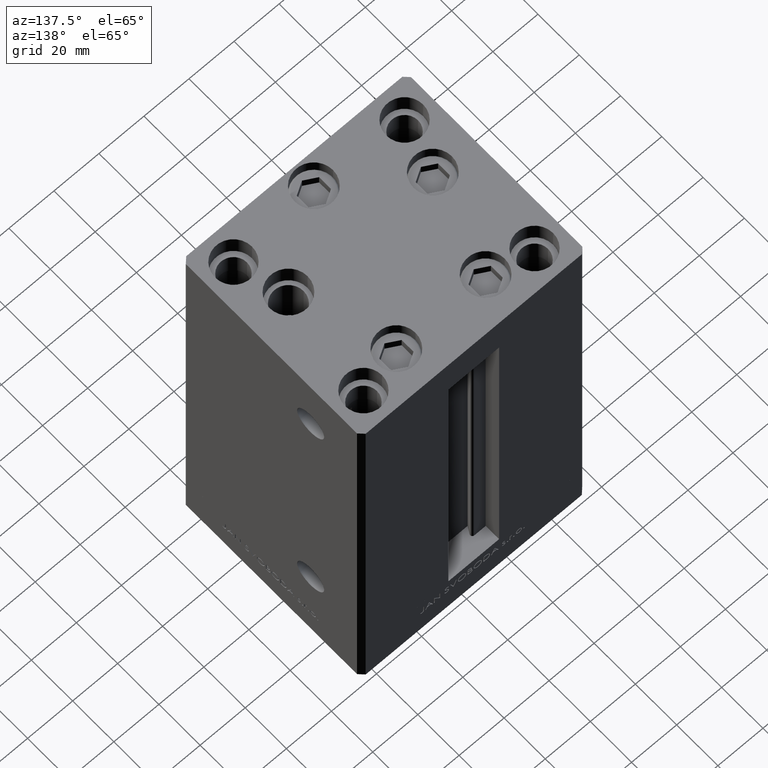
[diagram: clean part render]
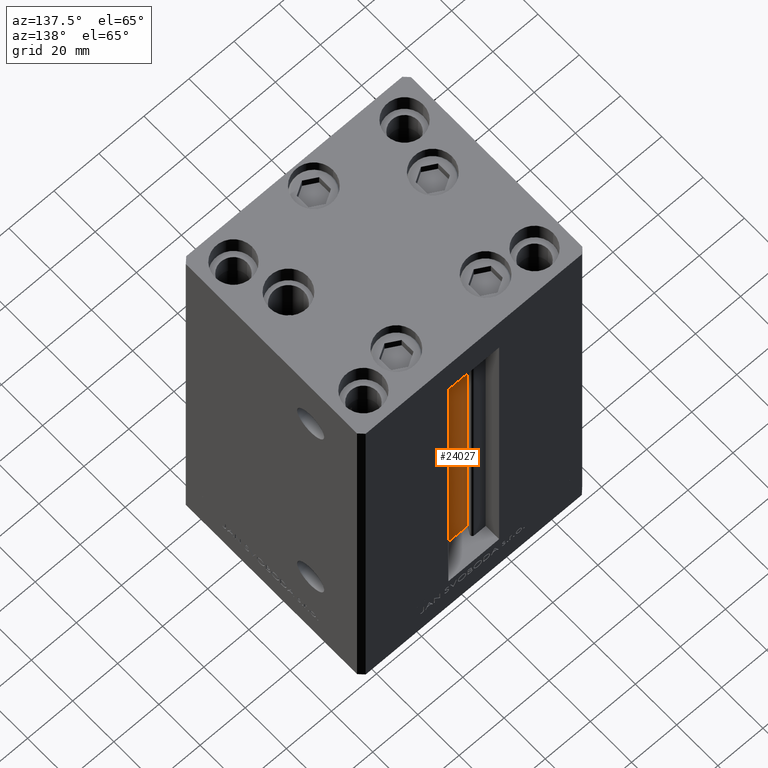
[diagram: same view with one face highlighted and labeled with its STEP entity id]
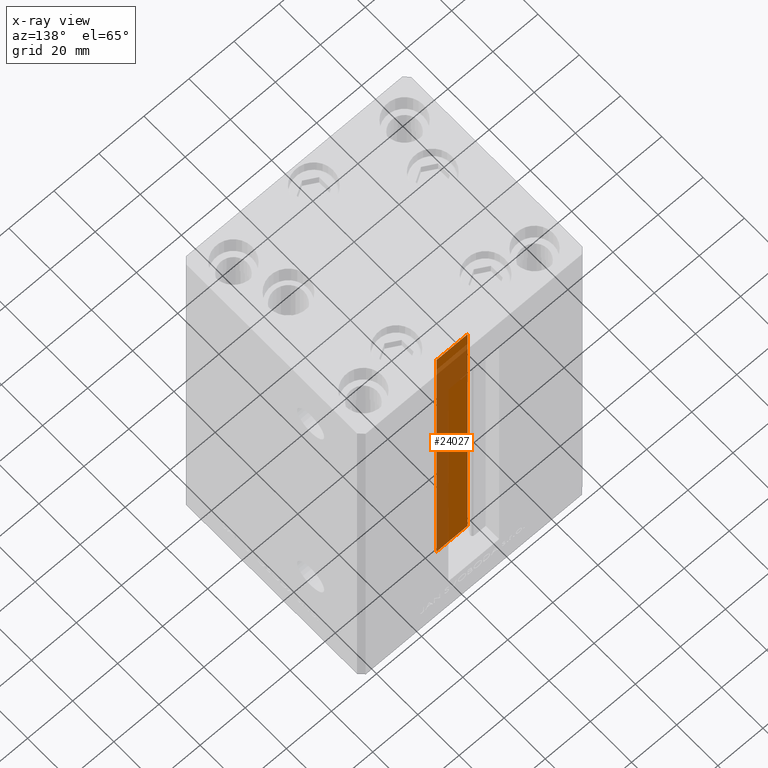
[diagram: x-ray of the same camera — body ghosted, the highlighted face saturated]
A machine part, auxiliary view. The second image highlights one B-rep face of the part: STEP entity #24027.
The next image is the same camera in x-ray: the body ghosted, the highlighted face saturated — about 46% of this face is hidden behind the body in this view.
In plain terms, the highlighted planar face has unit normal (0, -1, 0).
Its self-contained STEP definition (entity closure, byte-faithful):
#996 = VECTOR ( 'NONE', #6413, 1000.000000000000000 ) ;
#2410 = ORIENTED_EDGE ( 'NONE', *, *, #42153, .T. ) ;
#5158 = DIRECTION ( 'NONE',  ( -0.000000000000000000, -0.000000000000000000, 1.000000000000000000 ) ) ;
#6412 = EDGE_CURVE ( 'NONE', #9696, #7792, #44225, .T. ) ;
#6413 = DIRECTION ( 'NONE',  ( -1.000000000000000000, 0.000000000000000000, 0.000000000000000000 ) ) ;
#7129 = AXIS2_PLACEMENT_3D ( 'NONE', #46651, #12291, #40592 ) ;
#7290 = VECTOR ( 'NONE', #21399, 1000.000000000000000 ) ;
#7792 = VERTEX_POINT ( 'NONE', #26293 ) ;
#8056 = EDGE_CURVE ( 'NONE', #42219, #9696, #45294, .T. ) ;
#9696 = VERTEX_POINT ( 'NONE', #38622 ) ;
#10198 = EDGE_CURVE ( 'NONE', #7792, #20774, #37262, .T. ) ;
#11609 = CARTESIAN_POINT ( 'NONE',  ( -6.876153656360465050, 32.99999999999986500, 148.5000000000000000 ) ) ;
#12291 = DIRECTION ( 'NONE',  ( 0.000000000000000000, -1.000000000000000000, -0.000000000000000000 ) ) ;
#12314 = ORIENTED_EDGE ( 'NONE', *, *, #10198, .F. ) ;
#13387 = CARTESIAN_POINT ( 'NONE',  ( 6.876153656360465050, 32.99999999999986500, 0.000000000000000000 ) ) ;
#15794 = PLANE ( 'NONE',  #7129 ) ;
#16038 = FACE_OUTER_BOUND ( 'NONE', #26873, .T. ) ;
#20327 = ORIENTED_EDGE ( 'NONE', *, *, #6412, .F. ) ;
#20774 = VERTEX_POINT ( 'NONE', #11609 ) ;
#21399 = DIRECTION ( 'NONE',  ( -0.000000000000000000, -0.000000000000000000, 1.000000000000000000 ) ) ;
#24027 = ADVANCED_FACE ( 'NONE', ( #16038 ), #15794, .F. ) ;
#26293 = CARTESIAN_POINT ( 'NONE',  ( 6.876153656360465050, 32.99999999999986500, 148.5000000000000000 ) ) ;
#26483 = CARTESIAN_POINT ( 'NONE',  ( 6.876153656360465050, 32.99999999999986500, 0.000000000000000000 ) ) ;
#26873 = EDGE_LOOP ( 'NONE', ( #20327, #34143, #2410, #12314 ) ) ;
#31990 = LINE ( 'NONE', #47547, #48479 ) ;
#33747 = VECTOR ( 'NONE', #42023, 1000.000000000000000 ) ;
#34143 = ORIENTED_EDGE ( 'NONE', *, *, #8056, .F. ) ;
#37262 = LINE ( 'NONE', #48540, #996 ) ;
#37916 = CARTESIAN_POINT ( 'NONE',  ( -6.876153656360465050, 32.99999999999986500, 0.000000000000000000 ) ) ;
#38622 = CARTESIAN_POINT ( 'NONE',  ( 6.876153656360465050, 32.99999999999986500, 0.000000000000000000 ) ) ;
#40592 = DIRECTION ( 'NONE',  ( 0.000000000000000000, 0.000000000000000000, -1.000000000000000000 ) ) ;
#42023 = DIRECTION ( 'NONE',  ( 1.000000000000000000, -0.000000000000000000, -0.000000000000000000 ) ) ;
#42153 = EDGE_CURVE ( 'NONE', #42219, #20774, #31990, .T. ) ;
#42219 = VERTEX_POINT ( 'NONE', #37916 ) ;
#44225 = LINE ( 'NONE', #13387, #7290 ) ;
#45294 = LINE ( 'NONE', #26483, #33747 ) ;
#46651 = CARTESIAN_POINT ( 'NONE',  ( 6.876153656360465050, 32.99999999999986500, 0.000000000000000000 ) ) ;
#47547 = CARTESIAN_POINT ( 'NONE',  ( -6.876153656360465050, 32.99999999999986500, 0.000000000000000000 ) ) ;
#48479 = VECTOR ( 'NONE', #5158, 1000.000000000000000 ) ;
#48540 = CARTESIAN_POINT ( 'NONE',  ( 0.000000000000000000, 32.99999999999986500, 148.5000000000000000 ) ) ;